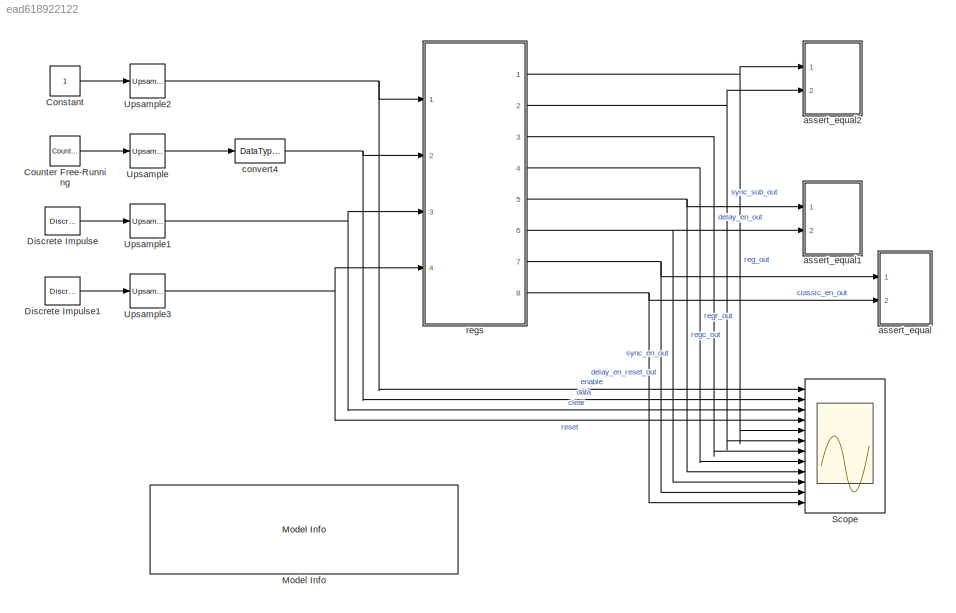
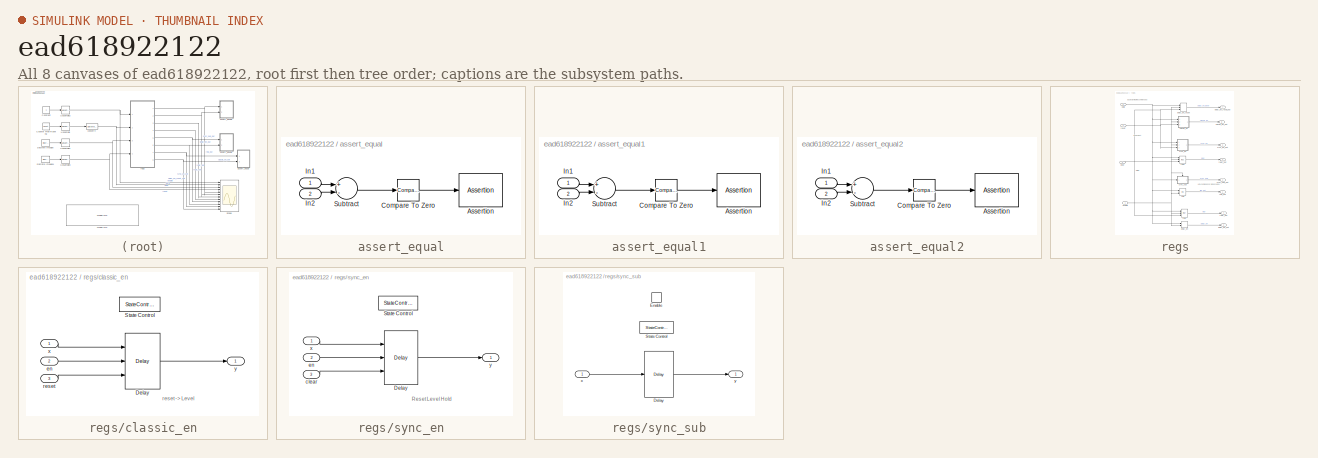
[diagram: thumbnail index - all 8 canvases of the model, root first then tree order]
MODEL slx_ead618922122
KIND model
CONFIG AbsTol = auto
CONFIG EnableMultiTasking = off
CONFIG FixedStep = auto
CONFIG MaxStep = auto
CONFIG MinStep = auto
CONFIG RelTol = 1e-3
CONFIG SampleTimeConstraint = Unconstrained
CONFIG Solver = FixedStepDiscrete
CONFIG SolverName = FixedStepDiscrete
CONFIG StartTime = 0.0
CONFIG StopTime = 16
BLOCK [Constant] Constant
  OutDataTypeStr = boolean
  SampleTime = -1
BLOCK [Reference] Counter Free-Running  REF=simulink/Sources/Counter
Free-Running
  Ports = [0, 1]
  SourceBlock = simulink/Sources/Counter\nFree-Running
  SourceProductBaseCode = SL
  SourceProductName = Simulink
  SourceType = Counter Free-Running
BLOCK [Reference] Discrete Impulse  REF=dspsrcs4/Discrete 
Impulse
  Ports = [0, 1]
  SourceBlock = dspsrcs4/Discrete \nImpulse
  SourceProductBaseCode = DS
  SourceProductName = DSP System Toolbox
  SourceType = Discrete Impulse
BLOCK [Reference] Discrete Impulse1  REF=dspsrcs4/Discrete 
Impulse
  Ports = [0, 1]
  SourceBlock = dspsrcs4/Discrete \nImpulse
  SourceProductBaseCode = DS
  SourceProductName = DSP System Toolbox
  SourceType = Discrete Impulse
BLOCK [Reference] Model Info  REF=simulink/Model-Wide
Utilities/Model Info
  Ports = []
  SourceBlock = simulink/Model-Wide\nUtilities/Model Info
  SourceProductBaseCode = SL
  SourceProductName = Simulink
  SourceType = CMBlock
BLOCK [Scope] Scope
  Floating = off
  NumInputPorts = 12
  Ports = [12]
  ScopeSpecificationString = Simulink.scopes.TimeScopeBlockCfg('CurrentConfiguration', extmgr.ConfigurationSet(extmgr.Configuration('Core','General UI',true),extmgr.Configuration('Core','Source UI',true),extmgr.Configuration('Sources','WiredSimulink',true),extmgr.Configuration('Visuals','Time Domain',true,'SerializedDisplays',{struct('MinYLimReal','-0.125','MaxYLimReal','1.125','YLabelReal','','MinYLimMag','0.00000','MaxYLimM...<+8884ch>
BLOCK [Reference] Upsample  REF=dspsigops/Upsample
  Ports = [1, 1]
  SourceBlock = dspsigops/Upsample
  SourceProductBaseCode = DS
  SourceProductName = DSP System Toolbox
  SourceType = Upsample
  UserDataPersistent = on
BLOCK [Reference] Upsample1  REF=dspsigops/Upsample
  Ports = [1, 1]
  SourceBlock = dspsigops/Upsample
  SourceProductBaseCode = DS
  SourceProductName = DSP System Toolbox
  SourceType = Upsample
  UserDataPersistent = on
BLOCK [Reference] Upsample2  REF=dspsigops/Upsample
  Ports = [1, 1]
  SourceBlock = dspsigops/Upsample
  SourceProductBaseCode = DS
  SourceProductName = DSP System Toolbox
  SourceType = Upsample
  UserDataPersistent = on
BLOCK [Reference] Upsample3  REF=dspsigops/Upsample
  Ports = [1, 1]
  SourceBlock = dspsigops/Upsample
  SourceProductBaseCode = DS
  SourceProductName = DSP System Toolbox
  SourceType = Upsample
  UserDataPersistent = on
BLOCK [SubSystem] assert_equal
  Ports = [2]
  RequestExecContextInheritance = off
BLOCK [Assertion] assert_equal/Assertion
BLOCK [Reference] assert_equal/Compare To Zero  REF=simulink/Logic and Bit
Operations/Compare
To Zero
  Ports = [1, 1]
  SourceBlock = simulink/Logic and Bit\nOperations/Compare\nTo Zero
  SourceProductBaseCode = SL
  SourceProductName = Simulink
  SourceType = Compare To Zero
BLOCK [Inport] assert_equal/In1
  IconDisplay = Port number
BLOCK [Inport] assert_equal/In2
  IconDisplay = Port number
  Port = 2
BLOCK [Sum] assert_equal/Subtract
  InputSameDT = off
  Inputs = +-
  OutDataTypeStr = Inherit: Inherit via internal rule
  Ports = [2, 1]
  SaturateOnIntegerOverflow = off
BLOCK [SubSystem] assert_equal1
  Ports = [2]
  RequestExecContextInheritance = off
BLOCK [Assertion] assert_equal1/Assertion
BLOCK [Reference] assert_equal1/Compare To Zero  REF=simulink/Logic and Bit
Operations/Compare
To Zero
  Ports = [1, 1]
  SourceBlock = simulink/Logic and Bit\nOperations/Compare\nTo Zero
  SourceProductBaseCode = SL
  SourceProductName = Simulink
  SourceType = Compare To Zero
BLOCK [Inport] assert_equal1/In1
  IconDisplay = Port number
BLOCK [Inport] assert_equal1/In2
  IconDisplay = Port number
  Port = 2
BLOCK [Sum] assert_equal1/Subtract
  InputSameDT = off
  Inputs = +-
  OutDataTypeStr = Inherit: Inherit via internal rule
  Ports = [2, 1]
  SaturateOnIntegerOverflow = off
BLOCK [SubSystem] assert_equal2
  Ports = [2]
  RequestExecContextInheritance = off
BLOCK [Assertion] assert_equal2/Assertion
BLOCK [Reference] assert_equal2/Compare To Zero  REF=simulink/Logic and Bit
Operations/Compare
To Zero
  Ports = [1, 1]
  SourceBlock = simulink/Logic and Bit\nOperations/Compare\nTo Zero
  SourceProductBaseCode = SL
  SourceProductName = Simulink
  SourceType = Compare To Zero
BLOCK [Inport] assert_equal2/In1
  IconDisplay = Port number
BLOCK [Inport] assert_equal2/In2
  IconDisplay = Port number
  Port = 2
BLOCK [Sum] assert_equal2/Subtract
  InputSameDT = off
  Inputs = +-
  OutDataTypeStr = Inherit: Inherit via internal rule
  Ports = [2, 1]
  SaturateOnIntegerOverflow = off
BLOCK [DataTypeConversion] convert4
  OutDataTypeStr = fixdt(1,16,2)
  RndMeth = Floor
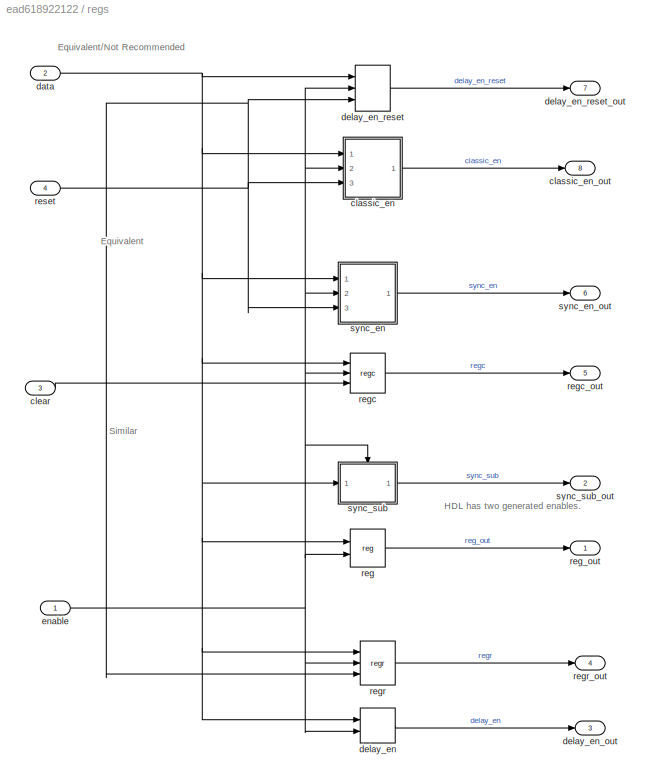
BLOCK [SubSystem] regs
  Ports = [4, 8]
  RequestExecContextInheritance = off
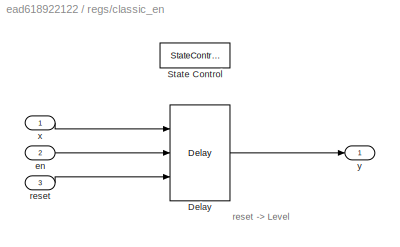
BLOCK [SubSystem] regs/classic_en
  Ports = [3, 1]
  RequestExecContextInheritance = off
BLOCK [Delay] regs/classic_en/Delay
  DelayLength = 1
  ExternalReset = Level
  InputPortMap = u0,e6,r5
  Ports = [3, 1]
  ShowEnablePort = on
BLOCK [StateControl] regs/classic_en/State Control
BLOCK [Inport] regs/classic_en/en
  IconDisplay = Port number
  Port = 2
BLOCK [Inport] regs/classic_en/reset
  IconDisplay = Port number
  Port = 3
BLOCK [Inport] regs/classic_en/x
  IconDisplay = Port number
BLOCK [Outport] regs/classic_en/y
  IconDisplay = Port number
BLOCK [Outport] regs/classic_en_out
  IconDisplay = Port number
  Port = 8
BLOCK [Inport] regs/clear
  IconDisplay = Port number
  Port = 3
BLOCK [Inport] regs/data
  IconDisplay = Port number
  Port = 2
BLOCK [Delay] regs/delay_en
  DelayLength = 1
  InputPortMap = u0,e6
  Ports = [2, 1]
  ShowEnablePort = on
BLOCK [Outport] regs/delay_en_out
  IconDisplay = Port number
  Port = 3
BLOCK [Delay] regs/delay_en_reset
  DelayLength = 1
  ExternalReset = Level
  InputPortMap = u0,e6,r5
  Ports = [3, 1]
  ShowEnablePort = on
BLOCK [Outport] regs/delay_en_reset_out
  IconDisplay = Port number
  Port = 7
BLOCK [Inport] regs/enable
  IconDisplay = Port number
BLOCK [Reference] regs/reg  REF=lib_dsphdlcontrol_v1/reg  (lib defined in slx_169a934beb0a)
  Ports = [2, 1]
  SourceBlock = lib_dsphdlcontrol_v1/reg
  SourceProductName = DSPHDL Library
BLOCK [Outport] regs/reg_out
  IconDisplay = Port number
BLOCK [Reference] regs/regc  REF=lib_dsphdlcontrol_v1/regc  (lib defined in slx_169a934beb0a)
  Ports = [3, 1]
  SourceBlock = lib_dsphdlcontrol_v1/regc
  SourceProductName = DSPHDL Library
BLOCK [Outport] regs/regc_out
  IconDisplay = Port number
  Port = 5
BLOCK [Reference] regs/regr  REF=lib_dsphdlcontrol_v1/regr  (lib defined in slx_169a934beb0a)
  Ports = [3, 1]
  SourceBlock = lib_dsphdlcontrol_v1/regr
  SourceProductName = DSPHDL Library
BLOCK [Outport] regs/regr_out
  IconDisplay = Port number
  Port = 4
BLOCK [Inport] regs/reset
  IconDisplay = Port number
  Port = 4
BLOCK [SubSystem] regs/sync_en
  Ports = [3, 1]
  RequestExecContextInheritance = off
BLOCK [Delay] regs/sync_en/Delay
  DelayLength = 1
  ExternalReset = Level hold
  InputPortMap = u0,e6,r5
  Ports = [3, 1]
  ShowEnablePort = on
BLOCK [StateControl] regs/sync_en/State Control
  StateControl = Synchronous
BLOCK [Inport] regs/sync_en/clear
  IconDisplay = Port number
  Port = 3
BLOCK [Inport] regs/sync_en/en
  IconDisplay = Port number
  Port = 2
BLOCK [Inport] regs/sync_en/x
  IconDisplay = Port number
BLOCK [Outport] regs/sync_en/y
  IconDisplay = Port number
BLOCK [Outport] regs/sync_en_out
  IconDisplay = Port number
  Port = 6
BLOCK [SubSystem] regs/sync_sub
  Ports = [1, 1, 1]
  RequestExecContextInheritance = off
BLOCK [Delay] regs/sync_sub/Delay
  DelayLength = 1
  InputPortMap = u0
  Ports = [1, 1]
BLOCK [EnablePort] regs/sync_sub/Enable
  Ports = []
BLOCK [StateControl] regs/sync_sub/State Control
  StateControl = Synchronous
BLOCK [Inport] regs/sync_sub/x
  IconDisplay = Port number
BLOCK [Outport] regs/sync_sub/y
  IconDisplay = Port number
BLOCK [Outport] regs/sync_sub_out
  IconDisplay = Port number
  Port = 2
ANNOTATION regs: Equivalent
ANNOTATION regs: Equivalent/Not Recommended
ANNOTATION regs: HDL has two generated enables.
ANNOTATION regs: Similar
ANNOTATION regs/classic_en: reset -> Level
ANNOTATION regs/sync_en: Reset Level Hold
LINE Constant:1 -> Upsample2:1
LINE Counter Free-Running:1 -> Upsample:1
LINE Discrete Impulse1:1 -> Upsample3:1
LINE Discrete Impulse:1 -> Upsample1:1
NET Upsample1:1 -> Scope:3, regs:3
NET Upsample2:1 -> Scope:1, regs:1
NET Upsample3:1 -> Scope:4, regs:4
LINE Upsample:1 -> convert4:1
LINE assert_equal/Compare To Zero:1 -> assert_equal/Assertion:1
LINE assert_equal/In1:1 -> assert_equal/Subtract:1
LINE assert_equal/In2:1 -> assert_equal/Subtract:2
LINE assert_equal/Subtract:1 -> assert_equal/Compare To Zero:1
LINE assert_equal1/Compare To Zero:1 -> assert_equal1/Assertion:1
LINE assert_equal1/In1:1 -> assert_equal1/Subtract:1
LINE assert_equal1/In2:1 -> assert_equal1/Subtract:2
LINE assert_equal1/Subtract:1 -> assert_equal1/Compare To Zero:1
LINE assert_equal2/Compare To Zero:1 -> assert_equal2/Assertion:1
LINE assert_equal2/In1:1 -> assert_equal2/Subtract:1
LINE assert_equal2/In2:1 -> assert_equal2/Subtract:2
LINE assert_equal2/Subtract:1 -> assert_equal2/Compare To Zero:1
NET convert4:1 -> Scope:2, regs:2
LINE regs/classic_en/Delay:1 -> regs/classic_en/y:1
LINE regs/classic_en/en:1 -> regs/classic_en/Delay:2
LINE regs/classic_en/reset:1 -> regs/classic_en/Delay:3
LINE regs/classic_en/x:1 -> regs/classic_en/Delay:1
LINE regs/classic_en:1 -> regs/classic_en_out:1
LINE regs/clear:1 -> regs/regc:3
NET regs/data:1 -> regs/classic_en:1, regs/delay_en:1, regs/delay_en_reset:1, regs/reg:1, regs/regc:1, regs/regr:1, regs/sync_en:1, regs/sync_sub:1
LINE regs/delay_en:1 -> regs/delay_en_out:1
LINE regs/delay_en_reset:1 -> regs/delay_en_reset_out:1
NET regs/enable:1 -> regs/classic_en:2, regs/delay_en:2, regs/delay_en_reset:2, regs/reg:2, regs/regc:2, regs/regr:2, regs/sync_en:2, regs/sync_sub:enable
LINE regs/reg:1 -> regs/reg_out:1
LINE regs/regc:1 -> regs/regc_out:1
LINE regs/regr:1 -> regs/regr_out:1
NET regs/reset:1 -> regs/classic_en:3, regs/delay_en_reset:3, regs/regr:3, regs/sync_en:3
LINE regs/sync_en/Delay:1 -> regs/sync_en/y:1
LINE regs/sync_en/clear:1 -> regs/sync_en/Delay:3
LINE regs/sync_en/en:1 -> regs/sync_en/Delay:2
LINE regs/sync_en/x:1 -> regs/sync_en/Delay:1
LINE regs/sync_en:1 -> regs/sync_en_out:1
LINE regs/sync_sub/Delay:1 -> regs/sync_sub/y:1
LINE regs/sync_sub/x:1 -> regs/sync_sub/Delay:1
LINE regs/sync_sub:1 -> regs/sync_sub_out:1
NET regs:1 -> Scope:5, assert_equal2:1
NET regs:2 -> Scope:6, assert_equal2:2
LINE regs:3 -> Scope:7
LINE regs:4 -> Scope:8
NET regs:5 -> Scope:9, assert_equal1:1
NET regs:6 -> Scope:10, assert_equal1:2
NET regs:7 -> Scope:11, assert_equal:1
NET regs:8 -> Scope:12, assert_equal:2
note: NET lines group one-source signal fan-out (src -> all destinations, sorted); 1:1 wires keep LINE
